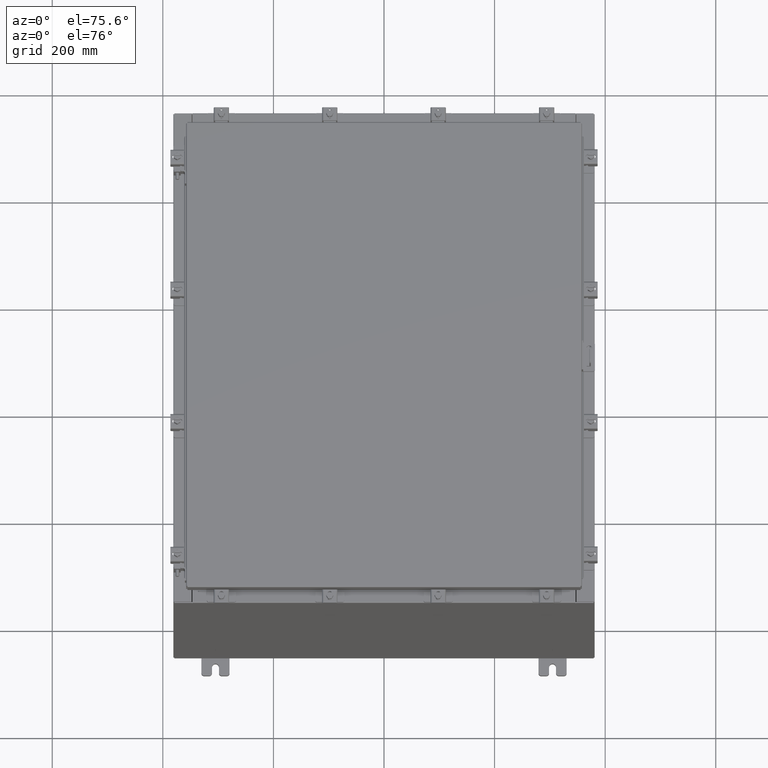
[diagram: clean part render]
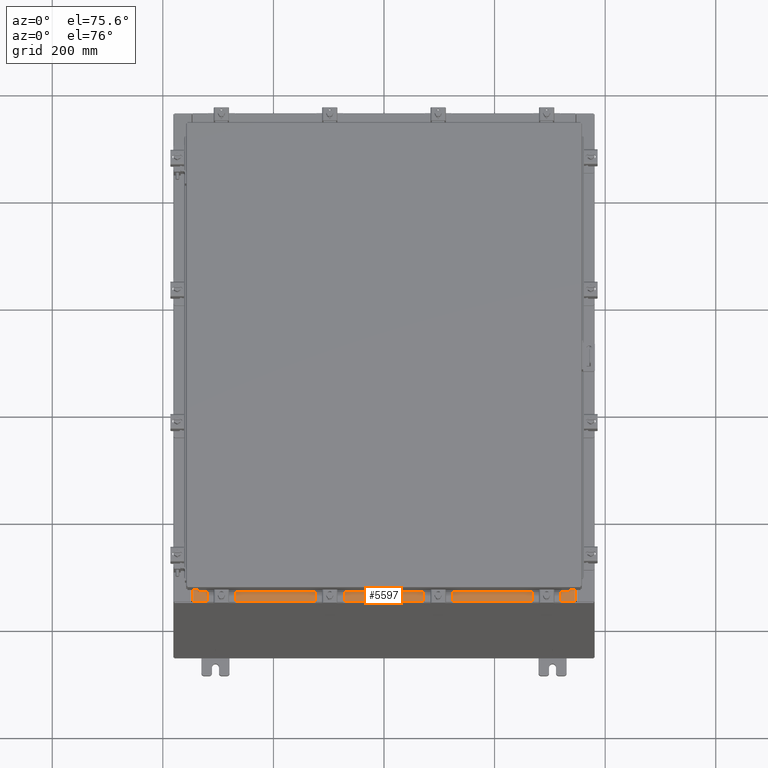
[diagram: same view with one face highlighted and labeled with its STEP entity id]
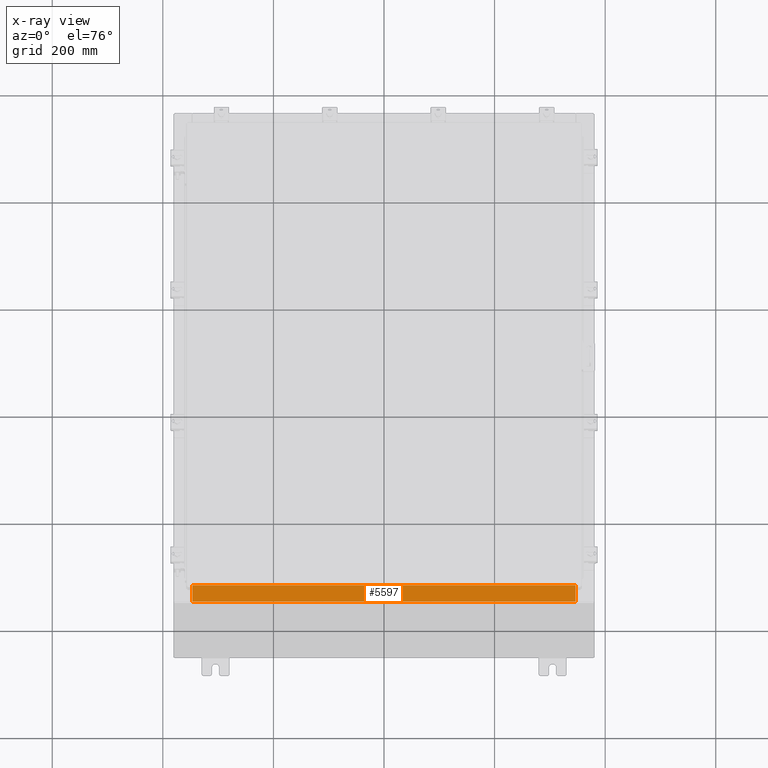
[diagram: x-ray of the same camera — body ghosted, the highlighted face saturated]
A machine part, auxiliary view. The second image highlights one B-rep face of the part: STEP entity #5597.
The next image is the same camera in x-ray: the body ghosted, the highlighted face saturated — about 0% of this face is hidden behind the body in this view.
In plain terms, the highlighted planar face has unit normal (-0, -0, 1).
Its self-contained STEP definition (entity closure, byte-faithful):
#552 = CARTESIAN_POINT ( 'NONE',  ( 6.299767562217697500E-016, -0.08769999999999862600, 7.999999999999999100 ) ) ;
#877 = ORIENTED_EDGE ( 'NONE', *, *, #7522, .F. ) ;
#2407 = CARTESIAN_POINT ( 'NONE',  ( -13.63719999999999800, -0.07469999999999973900, 8.000000000000000000 ) ) ;
#2467 = VERTEX_POINT ( 'NONE', #16615 ) ;
#2546 = CARTESIAN_POINT ( 'NONE',  ( 6.405177647445352000E-016, 2.852545452309694500E-014, 7.999999999999999100 ) ) ;
#3643 = LINE ( 'NONE', #2407, #13149 ) ;
#3832 = VERTEX_POINT ( 'NONE', #17775 ) ;
#5597 = ADVANCED_FACE ( 'NONE', ( #8145 ), #10021, .T. ) ;
#6178 = DIRECTION ( 'NONE',  ( -1.000000000000000000, 1.201939398262515800E-016, 8.012929321750060900E-017 ) ) ;
#6374 = DIRECTION ( 'NONE',  ( 8.012929321750104000E-017, 3.566381192773190000E-015, 1.000000000000000000 ) ) ;
#7168 = VECTOR ( 'NONE', #11639, 39.37007874015748100 ) ;
#7522 = EDGE_CURVE ( 'NONE', #14095, #3832, #12249, .T. ) ;
#7904 = EDGE_CURVE ( 'NONE', #3832, #2467, #21796, .T. ) ;
#8110 = VERTEX_POINT ( 'NONE', #11371 ) ;
#8145 = FACE_OUTER_BOUND ( 'NONE', #14884, .T. ) ;
#8305 = ORIENTED_EDGE ( 'NONE', *, *, #7904, .F. ) ;
#8403 = ORIENTED_EDGE ( 'NONE', *, *, #24382, .T. ) ;
#10021 = PLANE ( 'NONE',  #22894 ) ;
#10579 = CARTESIAN_POINT ( 'NONE',  ( 13.63720000000000400, -0.08769999999999829300, 7.999999999999997300 ) ) ;
#11371 = CARTESIAN_POINT ( 'NONE',  ( -13.63719999999999800, -0.08769999999999862600, 8.000000000000000000 ) ) ;
#11639 = DIRECTION ( 'NONE',  ( -0.0000000000000000000, -1.000000000000000000, 3.566381192773190000E-015 ) ) ;
#11754 = VECTOR ( 'NONE', #6178, 39.37007874015748100 ) ;
#12249 = LINE ( 'NONE', #17328, #7168 ) ;
#13149 = VECTOR ( 'NONE', #17578, 39.37007874015748100 ) ;
#14095 = VERTEX_POINT ( 'NONE', #10579 ) ;
#14884 = EDGE_LOOP ( 'NONE', ( #22921, #8305, #877, #8403 ) ) ;
#16507 = CARTESIAN_POINT ( 'NONE',  ( 13.63720000000000400, -1.287300000000000300, 8.000000000000003600 ) ) ;
#16615 = CARTESIAN_POINT ( 'NONE',  ( -13.63719999999999800, -1.287299999999999400, 8.000000000000003600 ) ) ;
#16779 = VECTOR ( 'NONE', #24087, 39.37007874015748100 ) ;
#17328 = CARTESIAN_POINT ( 'NONE',  ( 13.63720000000000400, -1.300299999999999800, 8.000000000000001800 ) ) ;
#17578 = DIRECTION ( 'NONE',  ( -0.0000000000000000000, 1.000000000000000000, -3.566381192773190000E-015 ) ) ;
#17775 = CARTESIAN_POINT ( 'NONE',  ( 13.63720000000000400, -1.287300000000000300, 8.000000000000001800 ) ) ;
#18066 = EDGE_CURVE ( 'NONE', #2467, #8110, #3643, .T. ) ;
#19601 = DIRECTION ( 'NONE',  ( 0.0000000000000000000, -1.000000000000000000, 3.566381192773190000E-015 ) ) ;
#21783 = LINE ( 'NONE', #552, #11754 ) ;
#21796 = LINE ( 'NONE', #16507, #16779 ) ;
#22894 = AXIS2_PLACEMENT_3D ( 'NONE', #2546, #6374, #19601 ) ;
#22921 = ORIENTED_EDGE ( 'NONE', *, *, #18066, .F. ) ;
#24087 = DIRECTION ( 'NONE',  ( -1.000000000000000000, 0.0000000000000000000, 0.0000000000000000000 ) ) ;
#24382 = EDGE_CURVE ( 'NONE', #14095, #8110, #21783, .T. ) ;